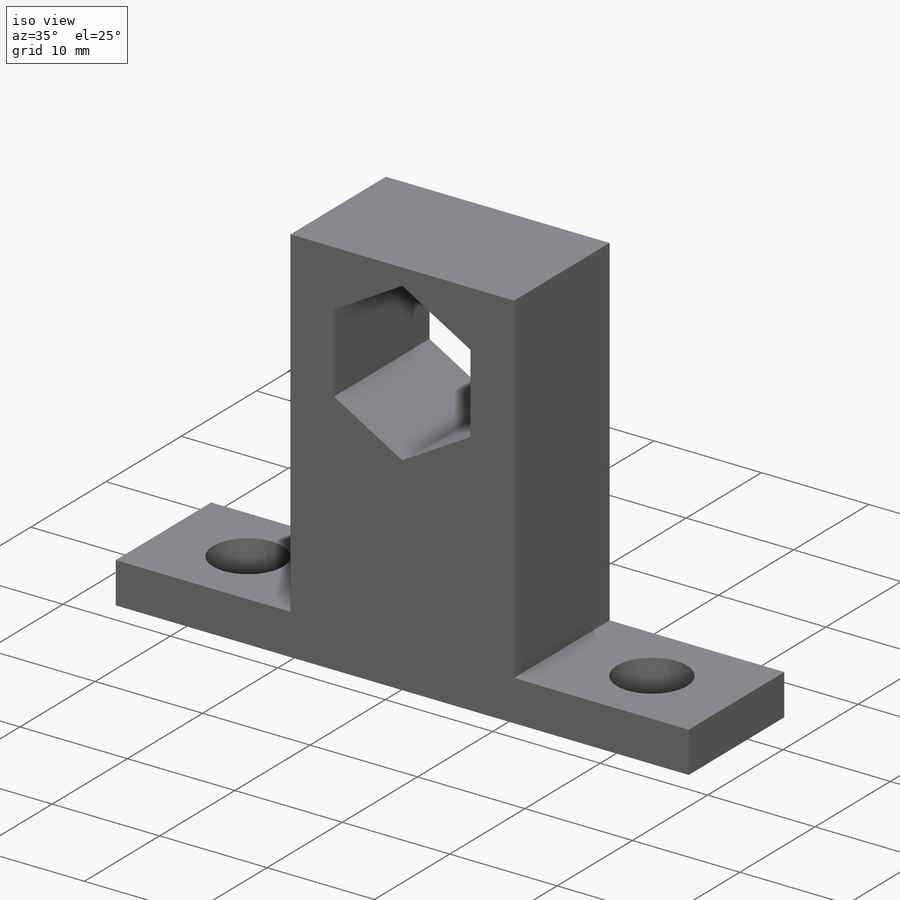
[diagram: iso view]
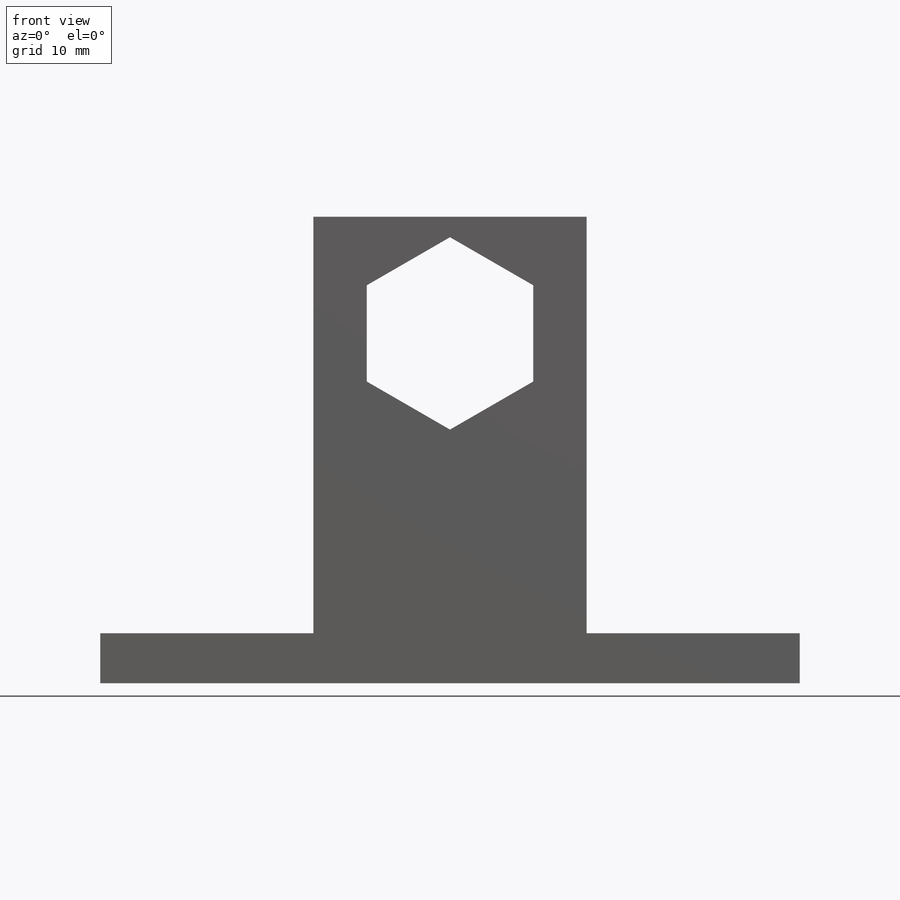
[diagram: front view]
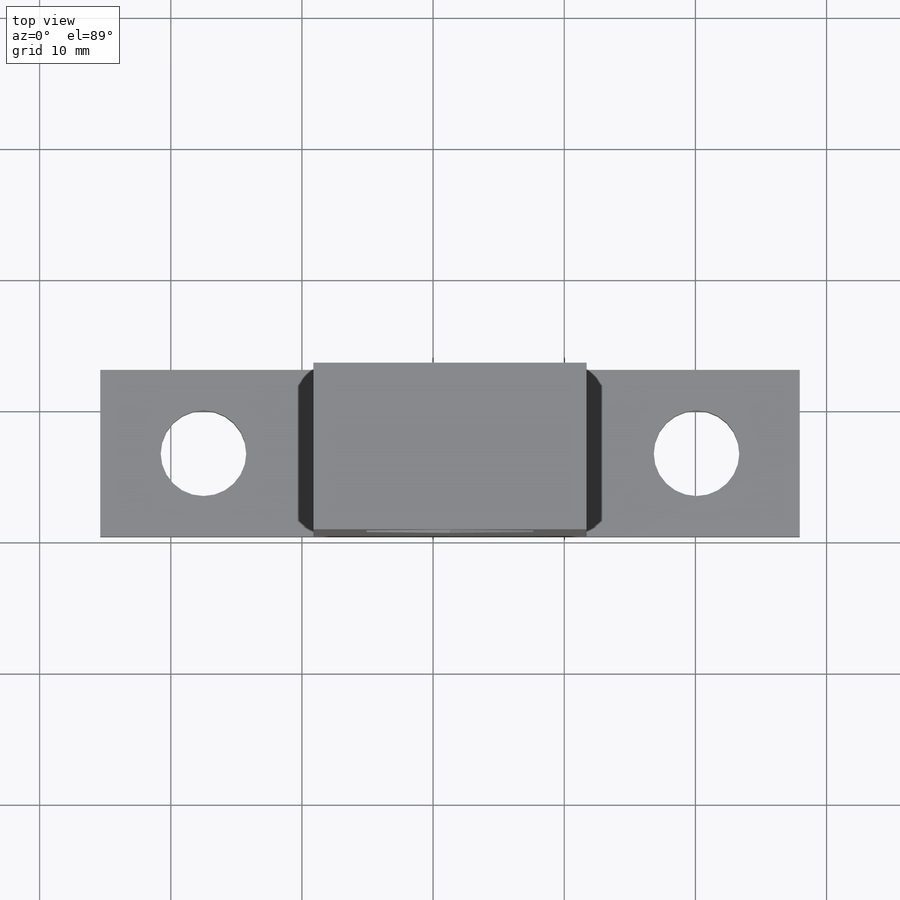
[diagram: top view]
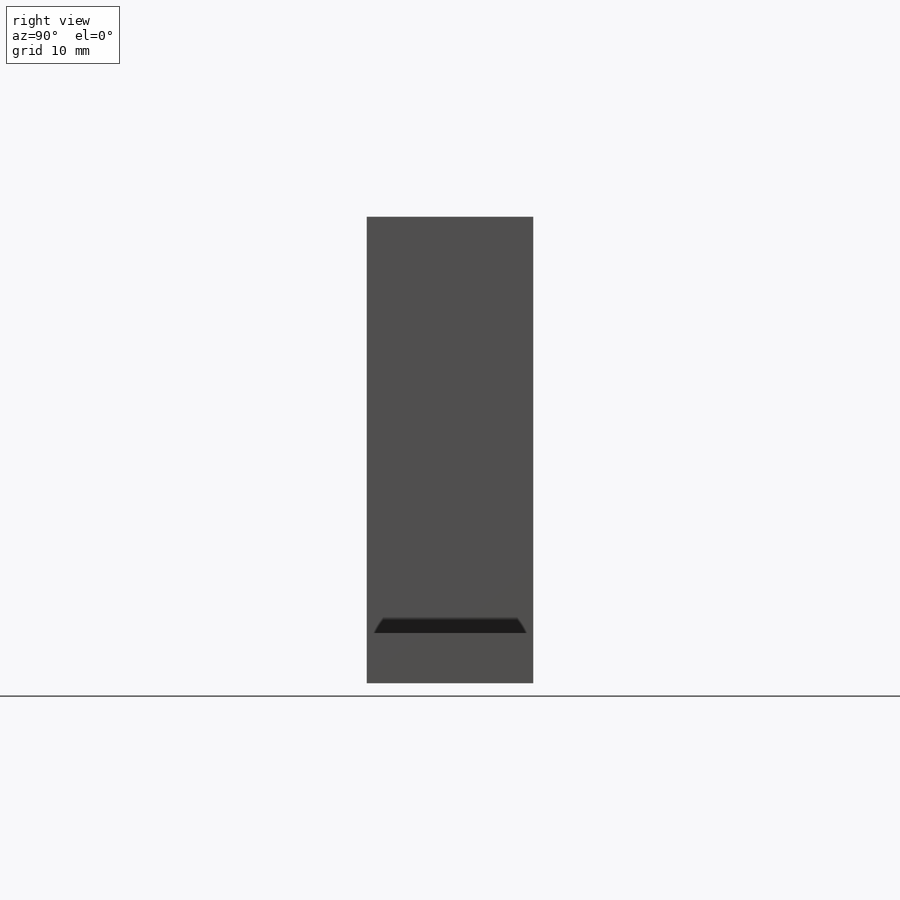
[diagram: right view]
SOLIDWORKS PART (.sldprt)
format: sldprt  version: not decoded by parser v0  size: 182,784 bytes
history: native  units: mm
features: sketch x3, extrude x2, material x1, cut_extrude x1 (+12 scaffold rows collapsed)
feature tree (19):
  scaffold x12  (default folders/planes/origin — collapsed)
  material  "Material <not specified>"
  sketch  "Sketch1"  dims[c1.D7=6.5278mm c1.D8=6.5278mm c1.D1=12.7mm c1.D2=53.34mm c1.D3=7.874mm c1.D4=7.874mm c1.D5=6.35mm c1.D6=6.35mm c2.D7=50.8mm c2.D9=7.62mm c2.D10=7.62mm c2.D11=20.32mm c3.D10=7.62mm]
  extrude  "Boss-Extrude3"  Depth=3.81mm
  sketch  "Sketch3"  dims[c1.D3=6.5278mm c1.D1=8.382mm c1.D2=8.382mm c2.D3=20.32mm]
  extrude  "Boss-Extrude4"  Depth=31.75mm
  sketch  "Sketch5"  dims[D1=26.67mm D2=10.414mm D3=12.7mm]
  cut_extrude  "Cut-Extrude3"  [1 undecoded]
decode coverage: 5 of 6 modeling features carry decoded parameters
note: 1 parameter value undecoded
note: suppression state not decoded; provenance and decode notes live in map.json
